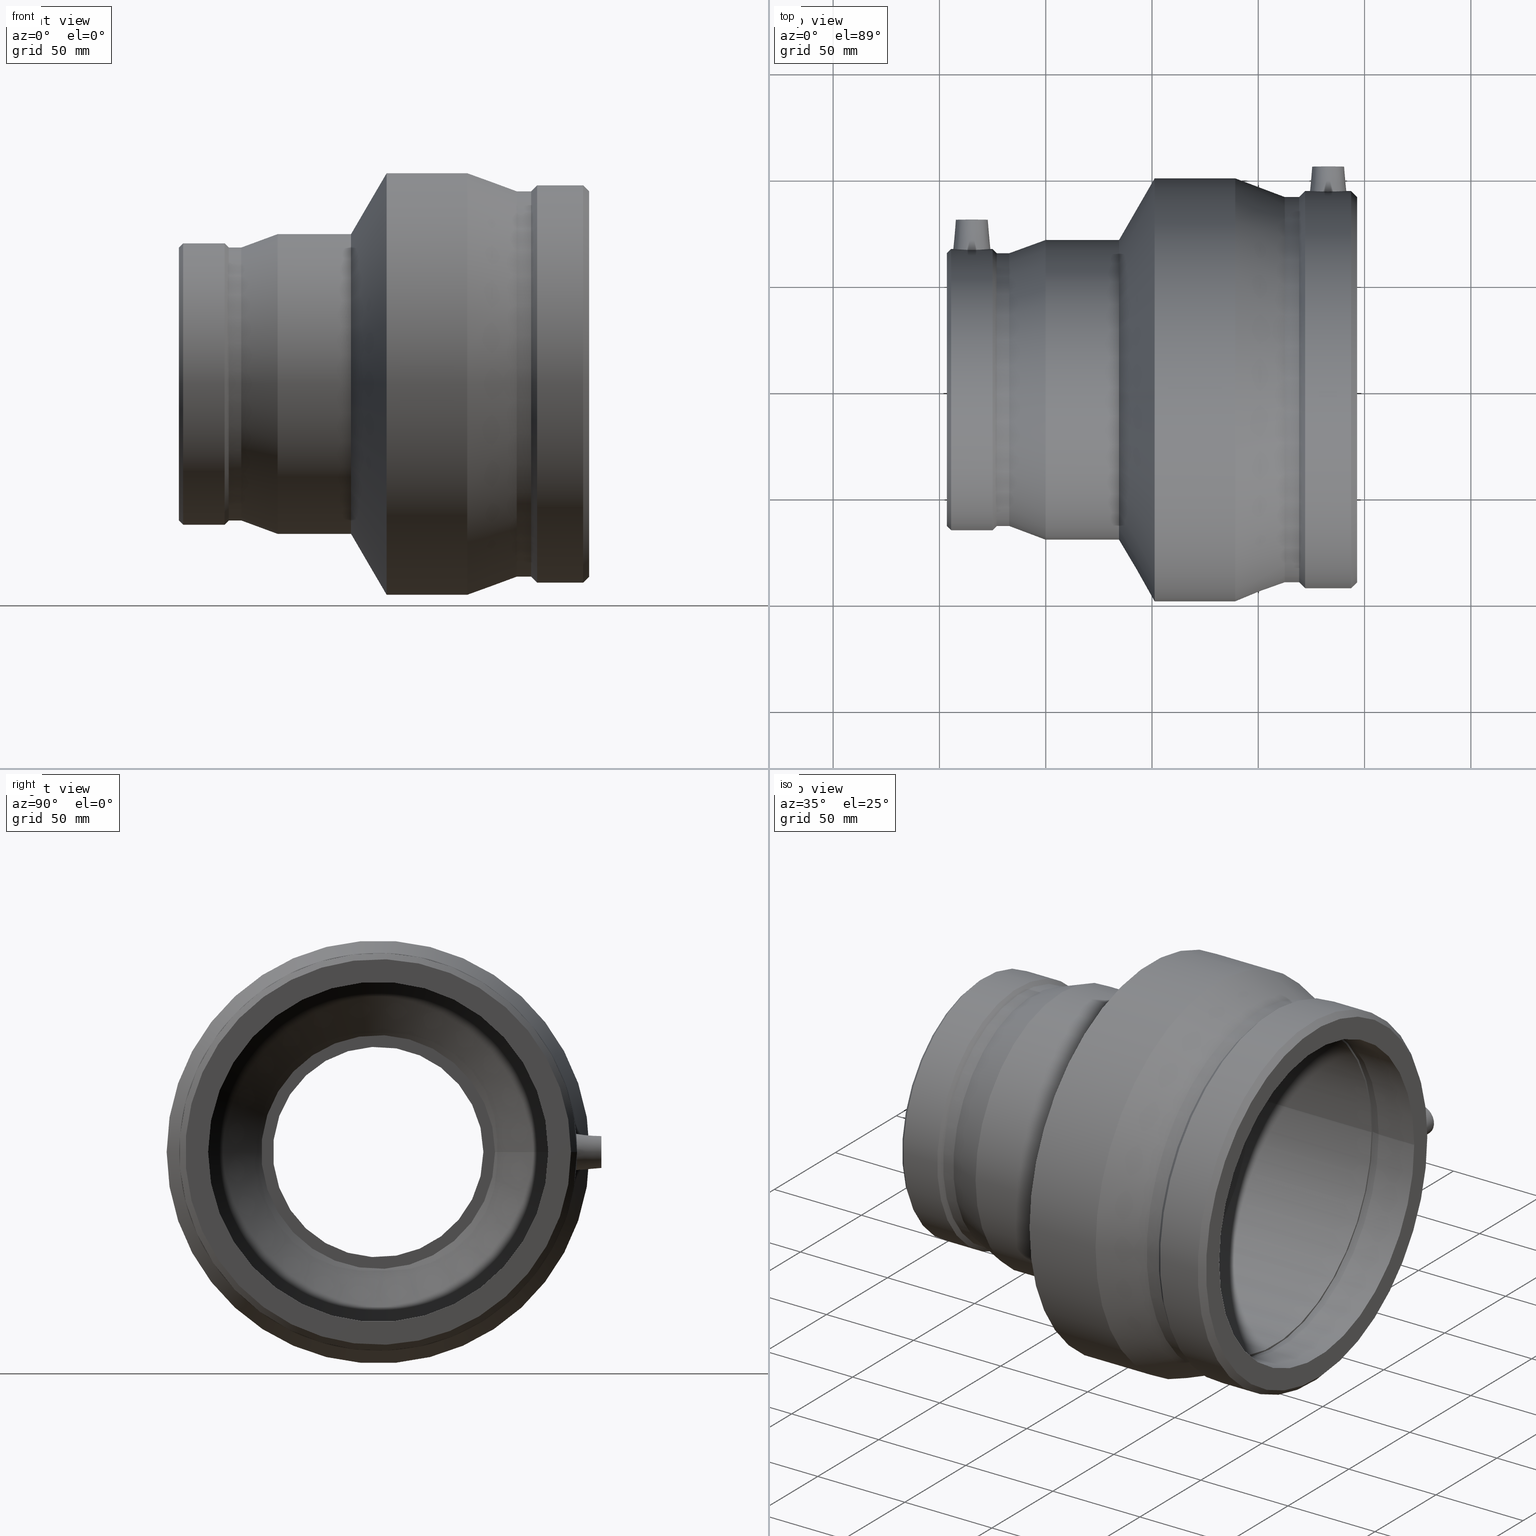
[diagram: canonical four-view strip — front | top / right | iso, engineering-drawing reading convention]
A machine part, canonical four-view strip (front | top / right | iso — engineering-drawing reading convention). The complete STEP part file that produces these views, byte-faithful:
ISO-10303-21;
HEADER;
/* Generated by software containing ST-Developer
 * from STEP Tools, Inc. (www.steptools.com) 
 */

FILE_DESCRIPTION(
/* description */ ('PLASSON REDUCING COUPLER 160-110'),
/* implementation_level */ '2;1');

FILE_NAME(
/* name */ 
'C:\\Dropbox\\KIMPROJECTS-Inventor\\99-16-3568-Processing\\ElectroFusi
on Fittings\\491104\\491104160110.ipt.stp',
/* time_stamp */ '2017-11-06T09:12:46+02:00',
/* author */ ('KIM'),
/* organization */ (''),
/* preprocessor_version */ 'ST-DEVELOPER v15.6',
/* originating_system */ 'Autodesk Inventor 2015',
/* authorisation */ '');

FILE_SCHEMA (('AUTOMOTIVE_DESIGN { 1 0 10303 214 3 1 1 }'));
ENDSEC;

DATA;
#10=MECHANICAL_DESIGN_GEOMETRIC_PRESENTATION_REPRESENTATION('',(#13),#863);
#11=SHAPE_REPRESENTATION_RELATIONSHIP('SRR','None',#872,#12);
#12=ADVANCED_BREP_SHAPE_REPRESENTATION($,(#14),#862);
#13=STYLED_ITEM('',(#881),#14);
#14=MANIFOLD_SOLID_BREP('Solid1',#444);
#15=B_SPLINE_CURVE_WITH_KNOTS('',3,(#697,#698,#699,#700,#701,#702,#703,
#704,#705,#706,#707,#708,#709,#710,#711,#712,#713,#714,#715,#716,#717,#718,
#719,#720,#721,#722,#723,#724,#725,#726,#727,#728,#729,#730),
 .UNSPECIFIED.,.T.,.F.,(4,2,2,2,2,2,2,2,2,2,2,2,2,2,2,2,4),(0.,0.321299273640737,
0.642598547281474,0.963601830435798,1.28460511359012,1.60560839674445,1.92661167989877,
2.24791095353951,2.56921022718025,2.89050950082098,3.21180877446172,3.53281205761604,
3.85381534077037,4.17481862392469,4.49582190707902,4.81712118071975,5.13842045436049),
 .UNSPECIFIED.);
#16=B_SPLINE_CURVE_WITH_KNOTS('',3,(#745,#746,#747,#748,#749,#750,#751,
#752,#753,#754,#755,#756,#757,#758,#759,#760,#761,#762,#763,#764,#765,#766,
#767,#768,#769,#770,#771,#772,#773,#774,#775,#776,#777,#778),
 .UNSPECIFIED.,.T.,.F.,(4,2,2,2,2,2,2,2,2,2,2,2,2,2,2,2,4),(0.,0.329357665774512,
0.658715331549024,0.987627213761086,1.31653909597315,1.64545097818521,1.97436286039727,
2.30372052617178,2.6330781919463,2.96243585772081,3.29179352349532,3.62070540570738,
3.94961728791944,4.27852917013151,4.60744105234357,4.93679871811808,5.26615638389259),
 .UNSPECIFIED.);
#17=CONICAL_SURFACE('',#458,7.5,5.);
#18=CONICAL_SURFACE('',#467,7.5,5.);
#19=CONICAL_SURFACE('',#471,65.27595,45.);
#20=CONICAL_SURFACE('',#475,65.27595,44.9999999999998);
#21=CONICAL_SURFACE('',#479,67.39095,20.);
#22=CONICAL_SURFACE('',#483,85.,60.0000000000001);
#23=CONICAL_SURFACE('',#487,95.11205,20.6668482190193);
#24=CONICAL_SURFACE('',#491,92.12705,45.);
#25=CONICAL_SURFACE('',#495,92.12705,45.);
#26=CONICAL_SURFACE('',#501,80.4304270373818,12.0000000000002);
#27=CONICAL_SURFACE('',#507,67.5,60.8384827807957);
#28=CONICAL_SURFACE('',#519,55.4304270373818,12.);
#29=FACE_BOUND('',#125,.T.);
#30=FACE_BOUND('',#127,.T.);
#31=FACE_BOUND('',#129,.T.);
#32=FACE_BOUND('',#131,.T.);
#33=FACE_BOUND('',#133,.T.);
#34=FACE_BOUND('',#135,.T.);
#35=FACE_BOUND('',#137,.T.);
#36=FACE_BOUND('',#139,.T.);
#37=FACE_BOUND('',#141,.T.);
#38=FACE_BOUND('',#143,.T.);
#39=FACE_BOUND('',#145,.T.);
#40=FACE_BOUND('',#147,.T.);
#41=FACE_BOUND('',#149,.T.);
#42=FACE_BOUND('',#150,.T.);
#43=FACE_BOUND('',#152,.T.);
#44=FACE_BOUND('',#154,.T.);
#45=FACE_BOUND('',#156,.T.);
#46=FACE_BOUND('',#158,.T.);
#47=FACE_BOUND('',#160,.T.);
#48=FACE_BOUND('',#162,.T.);
#49=FACE_BOUND('',#164,.T.);
#50=FACE_BOUND('',#166,.T.);
#51=FACE_BOUND('',#168,.T.);
#52=FACE_BOUND('',#170,.T.);
#53=FACE_BOUND('',#171,.T.);
#54=FACE_BOUND('',#173,.T.);
#55=FACE_BOUND('',#175,.T.);
#56=FACE_BOUND('',#177,.T.);
#57=FACE_BOUND('',#179,.T.);
#58=FACE_BOUND('',#181,.T.);
#59=FACE_BOUND('',#183,.T.);
#60=FACE_BOUND('',#185,.T.);
#61=FACE_BOUND('',#187,.T.);
#62=FACE_BOUND('',#189,.T.);
#63=FACE_BOUND('',#191,.T.);
#64=FACE_BOUND('',#193,.T.);
#65=FACE_BOUND('',#195,.T.);
#66=FACE_BOUND('',#197,.T.);
#67=FACE_BOUND('',#199,.T.);
#68=CYLINDRICAL_SURFACE('',#450,2.);
#69=CYLINDRICAL_SURFACE('',#452,5.);
#70=CYLINDRICAL_SURFACE('',#459,2.);
#71=CYLINDRICAL_SURFACE('',#461,5.);
#72=CYLINDRICAL_SURFACE('',#473,66.27);
#73=CYLINDRICAL_SURFACE('',#477,64.2819);
#74=CYLINDRICAL_SURFACE('',#481,70.5);
#75=CYLINDRICAL_SURFACE('',#485,99.5);
#76=CYLINDRICAL_SURFACE('',#489,90.7241);
#77=CYLINDRICAL_SURFACE('',#493,93.53);
#78=CYLINDRICAL_SURFACE('',#499,80.);
#79=CYLINDRICAL_SURFACE('',#505,80.);
#80=CYLINDRICAL_SURFACE('',#511,49.5);
#81=CYLINDRICAL_SURFACE('',#515,55.);
#82=CYLINDRICAL_SURFACE('',#521,55.);
#83=FACE_OUTER_BOUND('',#122,.T.);
#84=FACE_OUTER_BOUND('',#123,.T.);
#85=FACE_OUTER_BOUND('',#124,.T.);
#86=FACE_OUTER_BOUND('',#126,.T.);
#87=FACE_OUTER_BOUND('',#128,.T.);
#88=FACE_OUTER_BOUND('',#130,.T.);
#89=FACE_OUTER_BOUND('',#132,.T.);
#90=FACE_OUTER_BOUND('',#134,.T.);
#91=FACE_OUTER_BOUND('',#136,.T.);
#92=FACE_OUTER_BOUND('',#138,.T.);
#93=FACE_OUTER_BOUND('',#140,.T.);
#94=FACE_OUTER_BOUND('',#142,.T.);
#95=FACE_OUTER_BOUND('',#144,.T.);
#96=FACE_OUTER_BOUND('',#146,.T.);
#97=FACE_OUTER_BOUND('',#148,.T.);
#98=FACE_OUTER_BOUND('',#151,.T.);
#99=FACE_OUTER_BOUND('',#153,.T.);
#100=FACE_OUTER_BOUND('',#155,.T.);
#101=FACE_OUTER_BOUND('',#157,.T.);
#102=FACE_OUTER_BOUND('',#159,.T.);
#103=FACE_OUTER_BOUND('',#161,.T.);
#104=FACE_OUTER_BOUND('',#163,.T.);
#105=FACE_OUTER_BOUND('',#165,.T.);
#106=FACE_OUTER_BOUND('',#167,.T.);
#107=FACE_OUTER_BOUND('',#169,.T.);
#108=FACE_OUTER_BOUND('',#172,.T.);
#109=FACE_OUTER_BOUND('',#174,.T.);
#110=FACE_OUTER_BOUND('',#176,.T.);
#111=FACE_OUTER_BOUND('',#178,.T.);
#112=FACE_OUTER_BOUND('',#180,.T.);
#113=FACE_OUTER_BOUND('',#182,.T.);
#114=FACE_OUTER_BOUND('',#184,.T.);
#115=FACE_OUTER_BOUND('',#186,.T.);
#116=FACE_OUTER_BOUND('',#188,.T.);
#117=FACE_OUTER_BOUND('',#190,.T.);
#118=FACE_OUTER_BOUND('',#192,.T.);
#119=FACE_OUTER_BOUND('',#194,.T.);
#120=FACE_OUTER_BOUND('',#196,.T.);
#121=FACE_OUTER_BOUND('',#198,.T.);
#122=EDGE_LOOP('',(#315));
#123=EDGE_LOOP('',(#316));
#124=EDGE_LOOP('',(#317));
#125=EDGE_LOOP('',(#318));
#126=EDGE_LOOP('',(#319));
#127=EDGE_LOOP('',(#320));
#128=EDGE_LOOP('',(#321));
#129=EDGE_LOOP('',(#322));
#130=EDGE_LOOP('',(#323));
#131=EDGE_LOOP('',(#324));
#132=EDGE_LOOP('',(#325));
#133=EDGE_LOOP('',(#326));
#134=EDGE_LOOP('',(#327));
#135=EDGE_LOOP('',(#328));
#136=EDGE_LOOP('',(#329));
#137=EDGE_LOOP('',(#330));
#138=EDGE_LOOP('',(#331));
#139=EDGE_LOOP('',(#332));
#140=EDGE_LOOP('',(#333));
#141=EDGE_LOOP('',(#334));
#142=EDGE_LOOP('',(#335));
#143=EDGE_LOOP('',(#336));
#144=EDGE_LOOP('',(#337));
#145=EDGE_LOOP('',(#338));
#146=EDGE_LOOP('',(#339));
#147=EDGE_LOOP('',(#340));
#148=EDGE_LOOP('',(#341));
#149=EDGE_LOOP('',(#342));
#150=EDGE_LOOP('',(#343));
#151=EDGE_LOOP('',(#344));
#152=EDGE_LOOP('',(#345));
#153=EDGE_LOOP('',(#346));
#154=EDGE_LOOP('',(#347));
#155=EDGE_LOOP('',(#348));
#156=EDGE_LOOP('',(#349));
#157=EDGE_LOOP('',(#350));
#158=EDGE_LOOP('',(#351));
#159=EDGE_LOOP('',(#352));
#160=EDGE_LOOP('',(#353));
#161=EDGE_LOOP('',(#354));
#162=EDGE_LOOP('',(#355));
#163=EDGE_LOOP('',(#356));
#164=EDGE_LOOP('',(#357));
#165=EDGE_LOOP('',(#358));
#166=EDGE_LOOP('',(#359));
#167=EDGE_LOOP('',(#360));
#168=EDGE_LOOP('',(#361));
#169=EDGE_LOOP('',(#362));
#170=EDGE_LOOP('',(#363));
#171=EDGE_LOOP('',(#364));
#172=EDGE_LOOP('',(#365));
#173=EDGE_LOOP('',(#366));
#174=EDGE_LOOP('',(#367));
#175=EDGE_LOOP('',(#368));
#176=EDGE_LOOP('',(#369));
#177=EDGE_LOOP('',(#370));
#178=EDGE_LOOP('',(#371));
#179=EDGE_LOOP('',(#372));
#180=EDGE_LOOP('',(#373));
#181=EDGE_LOOP('',(#374));
#182=EDGE_LOOP('',(#375));
#183=EDGE_LOOP('',(#376));
#184=EDGE_LOOP('',(#377));
#185=EDGE_LOOP('',(#378));
#186=EDGE_LOOP('',(#379));
#187=EDGE_LOOP('',(#380));
#188=EDGE_LOOP('',(#381));
#189=EDGE_LOOP('',(#382));
#190=EDGE_LOOP('',(#383));
#191=EDGE_LOOP('',(#384));
#192=EDGE_LOOP('',(#385));
#193=EDGE_LOOP('',(#386));
#194=EDGE_LOOP('',(#387));
#195=EDGE_LOOP('',(#388));
#196=EDGE_LOOP('',(#389));
#197=EDGE_LOOP('',(#390));
#198=EDGE_LOOP('',(#391));
#199=EDGE_LOOP('',(#392));
#200=CIRCLE('',#447,2.);
#201=CIRCLE('',#449,2.);
#202=CIRCLE('',#451,2.);
#203=CIRCLE('',#453,5.);
#204=CIRCLE('',#454,5.);
#205=CIRCLE('',#457,7.5);
#206=CIRCLE('',#460,2.);
#207=CIRCLE('',#462,5.);
#208=CIRCLE('',#463,5.);
#209=CIRCLE('',#466,7.5);
#210=CIRCLE('',#469,64.2819);
#211=CIRCLE('',#470,55.);
#212=CIRCLE('',#472,66.27);
#213=CIRCLE('',#474,66.27);
#214=CIRCLE('',#476,64.2819);
#215=CIRCLE('',#478,64.2819);
#216=CIRCLE('',#480,70.5);
#217=CIRCLE('',#482,70.5);
#218=CIRCLE('',#484,99.5);
#219=CIRCLE('',#486,99.5);
#220=CIRCLE('',#488,90.7241);
#221=CIRCLE('',#490,90.7241);
#222=CIRCLE('',#492,93.53);
#223=CIRCLE('',#494,93.53);
#224=CIRCLE('',#496,90.7241);
#225=CIRCLE('',#498,80.);
#226=CIRCLE('',#500,80.);
#227=CIRCLE('',#502,80.8608540747636);
#228=CIRCLE('',#504,80.);
#229=CIRCLE('',#506,80.);
#230=CIRCLE('',#508,55.);
#231=CIRCLE('',#510,49.5);
#232=CIRCLE('',#512,49.5);
#233=CIRCLE('',#514,55.);
#234=CIRCLE('',#516,55.);
#235=CIRCLE('',#518,55.8608540747636);
#236=CIRCLE('',#520,55.);
#237=VERTEX_POINT('',#678);
#238=VERTEX_POINT('',#681);
#239=VERTEX_POINT('',#684);
#240=VERTEX_POINT('',#687);
#241=VERTEX_POINT('',#689);
#242=VERTEX_POINT('',#693);
#243=VERTEX_POINT('',#696);
#244=VERTEX_POINT('',#732);
#245=VERTEX_POINT('',#735);
#246=VERTEX_POINT('',#737);
#247=VERTEX_POINT('',#741);
#248=VERTEX_POINT('',#744);
#249=VERTEX_POINT('',#780);
#250=VERTEX_POINT('',#782);
#251=VERTEX_POINT('',#785);
#252=VERTEX_POINT('',#788);
#253=VERTEX_POINT('',#791);
#254=VERTEX_POINT('',#794);
#255=VERTEX_POINT('',#797);
#256=VERTEX_POINT('',#800);
#257=VERTEX_POINT('',#803);
#258=VERTEX_POINT('',#806);
#259=VERTEX_POINT('',#809);
#260=VERTEX_POINT('',#812);
#261=VERTEX_POINT('',#815);
#262=VERTEX_POINT('',#818);
#263=VERTEX_POINT('',#821);
#264=VERTEX_POINT('',#824);
#265=VERTEX_POINT('',#827);
#266=VERTEX_POINT('',#830);
#267=VERTEX_POINT('',#833);
#268=VERTEX_POINT('',#836);
#269=VERTEX_POINT('',#839);
#270=VERTEX_POINT('',#842);
#271=VERTEX_POINT('',#845);
#272=VERTEX_POINT('',#848);
#273=VERTEX_POINT('',#851);
#274=VERTEX_POINT('',#854);
#275=VERTEX_POINT('',#857);
#276=EDGE_CURVE('',#237,#237,#200,.T.);
#277=EDGE_CURVE('',#238,#238,#201,.T.);
#278=EDGE_CURVE('',#239,#239,#202,.T.);
#279=EDGE_CURVE('',#240,#240,#203,.T.);
#280=EDGE_CURVE('',#241,#241,#204,.T.);
#281=EDGE_CURVE('',#242,#242,#205,.T.);
#282=EDGE_CURVE('',#243,#243,#15,.T.);
#283=EDGE_CURVE('',#244,#244,#206,.T.);
#284=EDGE_CURVE('',#245,#245,#207,.T.);
#285=EDGE_CURVE('',#246,#246,#208,.T.);
#286=EDGE_CURVE('',#247,#247,#209,.T.);
#287=EDGE_CURVE('',#248,#248,#16,.T.);
#288=EDGE_CURVE('',#249,#249,#210,.T.);
#289=EDGE_CURVE('',#250,#250,#211,.T.);
#290=EDGE_CURVE('',#251,#251,#212,.T.);
#291=EDGE_CURVE('',#252,#252,#213,.T.);
#292=EDGE_CURVE('',#253,#253,#214,.T.);
#293=EDGE_CURVE('',#254,#254,#215,.T.);
#294=EDGE_CURVE('',#255,#255,#216,.T.);
#295=EDGE_CURVE('',#256,#256,#217,.T.);
#296=EDGE_CURVE('',#257,#257,#218,.T.);
#297=EDGE_CURVE('',#258,#258,#219,.T.);
#298=EDGE_CURVE('',#259,#259,#220,.T.);
#299=EDGE_CURVE('',#260,#260,#221,.T.);
#300=EDGE_CURVE('',#261,#261,#222,.T.);
#301=EDGE_CURVE('',#262,#262,#223,.T.);
#302=EDGE_CURVE('',#263,#263,#224,.T.);
#303=EDGE_CURVE('',#264,#264,#225,.T.);
#304=EDGE_CURVE('',#265,#265,#226,.T.);
#305=EDGE_CURVE('',#266,#266,#227,.T.);
#306=EDGE_CURVE('',#267,#267,#228,.T.);
#307=EDGE_CURVE('',#268,#268,#229,.T.);
#308=EDGE_CURVE('',#269,#269,#230,.T.);
#309=EDGE_CURVE('',#270,#270,#231,.T.);
#310=EDGE_CURVE('',#271,#271,#232,.T.);
#311=EDGE_CURVE('',#272,#272,#233,.T.);
#312=EDGE_CURVE('',#273,#273,#234,.T.);
#313=EDGE_CURVE('',#274,#274,#235,.T.);
#314=EDGE_CURVE('',#275,#275,#236,.T.);
#315=ORIENTED_EDGE('',*,*,#276,.F.);
#316=ORIENTED_EDGE('',*,*,#277,.F.);
#317=ORIENTED_EDGE('',*,*,#276,.T.);
#318=ORIENTED_EDGE('',*,*,#278,.T.);
#319=ORIENTED_EDGE('',*,*,#279,.T.);
#320=ORIENTED_EDGE('',*,*,#280,.F.);
#321=ORIENTED_EDGE('',*,*,#279,.F.);
#322=ORIENTED_EDGE('',*,*,#278,.F.);
#323=ORIENTED_EDGE('',*,*,#281,.F.);
#324=ORIENTED_EDGE('',*,*,#280,.T.);
#325=ORIENTED_EDGE('',*,*,#281,.T.);
#326=ORIENTED_EDGE('',*,*,#282,.F.);
#327=ORIENTED_EDGE('',*,*,#277,.T.);
#328=ORIENTED_EDGE('',*,*,#283,.T.);
#329=ORIENTED_EDGE('',*,*,#284,.T.);
#330=ORIENTED_EDGE('',*,*,#285,.F.);
#331=ORIENTED_EDGE('',*,*,#284,.F.);
#332=ORIENTED_EDGE('',*,*,#283,.F.);
#333=ORIENTED_EDGE('',*,*,#286,.F.);
#334=ORIENTED_EDGE('',*,*,#285,.T.);
#335=ORIENTED_EDGE('',*,*,#286,.T.);
#336=ORIENTED_EDGE('',*,*,#287,.F.);
#337=ORIENTED_EDGE('',*,*,#288,.F.);
#338=ORIENTED_EDGE('',*,*,#289,.T.);
#339=ORIENTED_EDGE('',*,*,#288,.T.);
#340=ORIENTED_EDGE('',*,*,#290,.F.);
#341=ORIENTED_EDGE('',*,*,#290,.T.);
#342=ORIENTED_EDGE('',*,*,#287,.T.);
#343=ORIENTED_EDGE('',*,*,#291,.F.);
#344=ORIENTED_EDGE('',*,*,#291,.T.);
#345=ORIENTED_EDGE('',*,*,#292,.F.);
#346=ORIENTED_EDGE('',*,*,#292,.T.);
#347=ORIENTED_EDGE('',*,*,#293,.F.);
#348=ORIENTED_EDGE('',*,*,#293,.T.);
#349=ORIENTED_EDGE('',*,*,#294,.F.);
#350=ORIENTED_EDGE('',*,*,#294,.T.);
#351=ORIENTED_EDGE('',*,*,#295,.F.);
#352=ORIENTED_EDGE('',*,*,#295,.T.);
#353=ORIENTED_EDGE('',*,*,#296,.F.);
#354=ORIENTED_EDGE('',*,*,#296,.T.);
#355=ORIENTED_EDGE('',*,*,#297,.F.);
#356=ORIENTED_EDGE('',*,*,#297,.T.);
#357=ORIENTED_EDGE('',*,*,#298,.F.);
#358=ORIENTED_EDGE('',*,*,#298,.T.);
#359=ORIENTED_EDGE('',*,*,#299,.F.);
#360=ORIENTED_EDGE('',*,*,#299,.T.);
#361=ORIENTED_EDGE('',*,*,#300,.F.);
#362=ORIENTED_EDGE('',*,*,#300,.T.);
#363=ORIENTED_EDGE('',*,*,#282,.T.);
#364=ORIENTED_EDGE('',*,*,#301,.F.);
#365=ORIENTED_EDGE('',*,*,#301,.T.);
#366=ORIENTED_EDGE('',*,*,#302,.F.);
#367=ORIENTED_EDGE('',*,*,#302,.T.);
#368=ORIENTED_EDGE('',*,*,#303,.F.);
#369=ORIENTED_EDGE('',*,*,#303,.T.);
#370=ORIENTED_EDGE('',*,*,#304,.F.);
#371=ORIENTED_EDGE('',*,*,#304,.T.);
#372=ORIENTED_EDGE('',*,*,#305,.F.);
#373=ORIENTED_EDGE('',*,*,#305,.T.);
#374=ORIENTED_EDGE('',*,*,#306,.F.);
#375=ORIENTED_EDGE('',*,*,#306,.T.);
#376=ORIENTED_EDGE('',*,*,#307,.F.);
#377=ORIENTED_EDGE('',*,*,#307,.T.);
#378=ORIENTED_EDGE('',*,*,#308,.F.);
#379=ORIENTED_EDGE('',*,*,#308,.T.);
#380=ORIENTED_EDGE('',*,*,#309,.F.);
#381=ORIENTED_EDGE('',*,*,#309,.T.);
#382=ORIENTED_EDGE('',*,*,#310,.F.);
#383=ORIENTED_EDGE('',*,*,#311,.F.);
#384=ORIENTED_EDGE('',*,*,#310,.T.);
#385=ORIENTED_EDGE('',*,*,#311,.T.);
#386=ORIENTED_EDGE('',*,*,#312,.F.);
#387=ORIENTED_EDGE('',*,*,#313,.F.);
#388=ORIENTED_EDGE('',*,*,#312,.T.);
#389=ORIENTED_EDGE('',*,*,#313,.T.);
#390=ORIENTED_EDGE('',*,*,#314,.F.);
#391=ORIENTED_EDGE('',*,*,#314,.T.);
#392=ORIENTED_EDGE('',*,*,#289,.F.);
#393=PLANE('',#446);
#394=PLANE('',#448);
#395=PLANE('',#455);
#396=PLANE('',#456);
#397=PLANE('',#464);
#398=PLANE('',#465);
#399=PLANE('',#468);
#400=PLANE('',#497);
#401=PLANE('',#503);
#402=PLANE('',#509);
#403=PLANE('',#513);
#404=PLANE('',#517);
#405=ADVANCED_FACE('',(#83),#393,.T.);
#406=ADVANCED_FACE('',(#84),#394,.T.);
#407=ADVANCED_FACE('',(#85,#29),#68,.T.);
#408=ADVANCED_FACE('',(#86,#30),#69,.F.);
#409=ADVANCED_FACE('',(#87,#31),#395,.T.);
#410=ADVANCED_FACE('',(#88,#32),#396,.T.);
#411=ADVANCED_FACE('',(#89,#33),#17,.T.);
#412=ADVANCED_FACE('',(#90,#34),#70,.T.);
#413=ADVANCED_FACE('',(#91,#35),#71,.F.);
#414=ADVANCED_FACE('',(#92,#36),#397,.T.);
#415=ADVANCED_FACE('',(#93,#37),#398,.T.);
#416=ADVANCED_FACE('',(#94,#38),#18,.T.);
#417=ADVANCED_FACE('',(#95,#39),#399,.T.);
#418=ADVANCED_FACE('',(#96,#40),#19,.T.);
#419=ADVANCED_FACE('',(#97,#41,#42),#72,.T.);
#420=ADVANCED_FACE('',(#98,#43),#20,.T.);
#421=ADVANCED_FACE('',(#99,#44),#73,.T.);
#422=ADVANCED_FACE('',(#100,#45),#21,.T.);
#423=ADVANCED_FACE('',(#101,#46),#74,.T.);
#424=ADVANCED_FACE('',(#102,#47),#22,.T.);
#425=ADVANCED_FACE('',(#103,#48),#75,.T.);
#426=ADVANCED_FACE('',(#104,#49),#23,.T.);
#427=ADVANCED_FACE('',(#105,#50),#76,.T.);
#428=ADVANCED_FACE('',(#106,#51),#24,.T.);
#429=ADVANCED_FACE('',(#107,#52,#53),#77,.T.);
#430=ADVANCED_FACE('',(#108,#54),#25,.T.);
#431=ADVANCED_FACE('',(#109,#55),#400,.T.);
#432=ADVANCED_FACE('',(#110,#56),#78,.F.);
#433=ADVANCED_FACE('',(#111,#57),#26,.F.);
#434=ADVANCED_FACE('',(#112,#58),#401,.T.);
#435=ADVANCED_FACE('',(#113,#59),#79,.F.);
#436=ADVANCED_FACE('',(#114,#60),#27,.F.);
#437=ADVANCED_FACE('',(#115,#61),#402,.T.);
#438=ADVANCED_FACE('',(#116,#62),#80,.F.);
#439=ADVANCED_FACE('',(#117,#63),#403,.T.);
#440=ADVANCED_FACE('',(#118,#64),#81,.F.);
#441=ADVANCED_FACE('',(#119,#65),#404,.T.);
#442=ADVANCED_FACE('',(#120,#66),#28,.F.);
#443=ADVANCED_FACE('',(#121,#67),#82,.F.);
#444=CLOSED_SHELL('',(#405,#406,#407,#408,#409,#410,#411,#412,#413,#414,
#415,#416,#417,#418,#419,#420,#421,#422,#423,#424,#425,#426,#427,#428,#429,
#430,#431,#432,#433,#434,#435,#436,#437,#438,#439,#440,#441,#442,#443));
#445=AXIS2_PLACEMENT_3D('placement',#676,#522,#523);
#446=AXIS2_PLACEMENT_3D('',#677,#524,#525);
#447=AXIS2_PLACEMENT_3D('',#679,#526,#527);
#448=AXIS2_PLACEMENT_3D('',#680,#528,#529);
#449=AXIS2_PLACEMENT_3D('',#682,#530,#531);
#450=AXIS2_PLACEMENT_3D('',#683,#532,#533);
#451=AXIS2_PLACEMENT_3D('',#685,#534,#535);
#452=AXIS2_PLACEMENT_3D('',#686,#536,#537);
#453=AXIS2_PLACEMENT_3D('',#688,#538,#539);
#454=AXIS2_PLACEMENT_3D('',#690,#540,#541);
#455=AXIS2_PLACEMENT_3D('',#691,#542,#543);
#456=AXIS2_PLACEMENT_3D('',#692,#544,#545);
#457=AXIS2_PLACEMENT_3D('',#694,#546,#547);
#458=AXIS2_PLACEMENT_3D('',#695,#548,#549);
#459=AXIS2_PLACEMENT_3D('',#731,#550,#551);
#460=AXIS2_PLACEMENT_3D('',#733,#552,#553);
#461=AXIS2_PLACEMENT_3D('',#734,#554,#555);
#462=AXIS2_PLACEMENT_3D('',#736,#556,#557);
#463=AXIS2_PLACEMENT_3D('',#738,#558,#559);
#464=AXIS2_PLACEMENT_3D('',#739,#560,#561);
#465=AXIS2_PLACEMENT_3D('',#740,#562,#563);
#466=AXIS2_PLACEMENT_3D('',#742,#564,#565);
#467=AXIS2_PLACEMENT_3D('',#743,#566,#567);
#468=AXIS2_PLACEMENT_3D('',#779,#568,#569);
#469=AXIS2_PLACEMENT_3D('',#781,#570,#571);
#470=AXIS2_PLACEMENT_3D('',#783,#572,#573);
#471=AXIS2_PLACEMENT_3D('',#784,#574,#575);
#472=AXIS2_PLACEMENT_3D('',#786,#576,#577);
#473=AXIS2_PLACEMENT_3D('',#787,#578,#579);
#474=AXIS2_PLACEMENT_3D('',#789,#580,#581);
#475=AXIS2_PLACEMENT_3D('',#790,#582,#583);
#476=AXIS2_PLACEMENT_3D('',#792,#584,#585);
#477=AXIS2_PLACEMENT_3D('',#793,#586,#587);
#478=AXIS2_PLACEMENT_3D('',#795,#588,#589);
#479=AXIS2_PLACEMENT_3D('',#796,#590,#591);
#480=AXIS2_PLACEMENT_3D('',#798,#592,#593);
#481=AXIS2_PLACEMENT_3D('',#799,#594,#595);
#482=AXIS2_PLACEMENT_3D('',#801,#596,#597);
#483=AXIS2_PLACEMENT_3D('',#802,#598,#599);
#484=AXIS2_PLACEMENT_3D('',#804,#600,#601);
#485=AXIS2_PLACEMENT_3D('',#805,#602,#603);
#486=AXIS2_PLACEMENT_3D('',#807,#604,#605);
#487=AXIS2_PLACEMENT_3D('',#808,#606,#607);
#488=AXIS2_PLACEMENT_3D('',#810,#608,#609);
#489=AXIS2_PLACEMENT_3D('',#811,#610,#611);
#490=AXIS2_PLACEMENT_3D('',#813,#612,#613);
#491=AXIS2_PLACEMENT_3D('',#814,#614,#615);
#492=AXIS2_PLACEMENT_3D('',#816,#616,#617);
#493=AXIS2_PLACEMENT_3D('',#817,#618,#619);
#494=AXIS2_PLACEMENT_3D('',#819,#620,#621);
#495=AXIS2_PLACEMENT_3D('',#820,#622,#623);
#496=AXIS2_PLACEMENT_3D('',#822,#624,#625);
#497=AXIS2_PLACEMENT_3D('',#823,#626,#627);
#498=AXIS2_PLACEMENT_3D('',#825,#628,#629);
#499=AXIS2_PLACEMENT_3D('',#826,#630,#631);
#500=AXIS2_PLACEMENT_3D('',#828,#632,#633);
#501=AXIS2_PLACEMENT_3D('',#829,#634,#635);
#502=AXIS2_PLACEMENT_3D('',#831,#636,#637);
#503=AXIS2_PLACEMENT_3D('',#832,#638,#639);
#504=AXIS2_PLACEMENT_3D('',#834,#640,#641);
#505=AXIS2_PLACEMENT_3D('',#835,#642,#643);
#506=AXIS2_PLACEMENT_3D('',#837,#644,#645);
#507=AXIS2_PLACEMENT_3D('',#838,#646,#647);
#508=AXIS2_PLACEMENT_3D('',#840,#648,#649);
#509=AXIS2_PLACEMENT_3D('',#841,#650,#651);
#510=AXIS2_PLACEMENT_3D('',#843,#652,#653);
#511=AXIS2_PLACEMENT_3D('',#844,#654,#655);
#512=AXIS2_PLACEMENT_3D('',#846,#656,#657);
#513=AXIS2_PLACEMENT_3D('',#847,#658,#659);
#514=AXIS2_PLACEMENT_3D('',#849,#660,#661);
#515=AXIS2_PLACEMENT_3D('',#850,#662,#663);
#516=AXIS2_PLACEMENT_3D('',#852,#664,#665);
#517=AXIS2_PLACEMENT_3D('',#853,#666,#667);
#518=AXIS2_PLACEMENT_3D('',#855,#668,#669);
#519=AXIS2_PLACEMENT_3D('',#856,#670,#671);
#520=AXIS2_PLACEMENT_3D('',#858,#672,#673);
#521=AXIS2_PLACEMENT_3D('',#859,#674,#675);
#522=DIRECTION('axis',(0.,0.,1.));
#523=DIRECTION('refdir',(1.,0.,0.));
#524=DIRECTION('center_axis',(0.,1.,0.));
#525=DIRECTION('ref_axis',(0.,0.,1.));
#526=DIRECTION('center_axis',(0.,-1.,0.));
#527=DIRECTION('ref_axis',(-1.,0.,0.));
#528=DIRECTION('center_axis',(0.,1.,0.));
#529=DIRECTION('ref_axis',(0.,0.,1.));
#530=DIRECTION('center_axis',(0.,-1.,0.));
#531=DIRECTION('ref_axis',(-1.,0.,0.));
#532=DIRECTION('center_axis',(0.,-1.,0.));
#533=DIRECTION('ref_axis',(-1.,0.,0.));
#534=DIRECTION('center_axis',(0.,1.,0.));
#535=DIRECTION('ref_axis',(-1.,0.,0.));
#536=DIRECTION('center_axis',(0.,-1.,0.));
#537=DIRECTION('ref_axis',(-1.,0.,0.));
#538=DIRECTION('center_axis',(0.,-1.,0.));
#539=DIRECTION('ref_axis',(-1.,0.,0.));
#540=DIRECTION('center_axis',(0.,-1.,0.));
#541=DIRECTION('ref_axis',(-1.,0.,0.));
#542=DIRECTION('center_axis',(0.,1.,0.));
#543=DIRECTION('ref_axis',(0.,0.,1.));
#544=DIRECTION('center_axis',(0.,1.,0.));
#545=DIRECTION('ref_axis',(0.,0.,1.));
#546=DIRECTION('center_axis',(0.,-1.,0.));
#547=DIRECTION('ref_axis',(1.,0.,0.));
#548=DIRECTION('center_axis',(0.,-1.,0.));
#549=DIRECTION('ref_axis',(1.,0.,0.));
#550=DIRECTION('center_axis',(0.,-1.,0.));
#551=DIRECTION('ref_axis',(-1.,0.,0.));
#552=DIRECTION('center_axis',(0.,1.,0.));
#553=DIRECTION('ref_axis',(-1.,0.,0.));
#554=DIRECTION('center_axis',(0.,-1.,0.));
#555=DIRECTION('ref_axis',(-1.,0.,0.));
#556=DIRECTION('center_axis',(0.,-1.,0.));
#557=DIRECTION('ref_axis',(-1.,0.,0.));
#558=DIRECTION('center_axis',(0.,-1.,0.));
#559=DIRECTION('ref_axis',(-1.,0.,0.));
#560=DIRECTION('center_axis',(0.,1.,0.));
#561=DIRECTION('ref_axis',(0.,0.,1.));
#562=DIRECTION('center_axis',(0.,1.,0.));
#563=DIRECTION('ref_axis',(0.,0.,1.));
#564=DIRECTION('center_axis',(0.,-1.,0.));
#565=DIRECTION('ref_axis',(1.,0.,0.));
#566=DIRECTION('center_axis',(0.,-1.,0.));
#567=DIRECTION('ref_axis',(1.,0.,0.));
#568=DIRECTION('center_axis',(-1.,0.,0.));
#569=DIRECTION('ref_axis',(0.,0.,1.));
#570=DIRECTION('center_axis',(1.,0.,0.));
#571=DIRECTION('ref_axis',(0.,0.,-1.));
#572=DIRECTION('center_axis',(1.,0.,0.));
#573=DIRECTION('ref_axis',(0.,0.,-1.));
#574=DIRECTION('center_axis',(1.,0.,0.));
#575=DIRECTION('ref_axis',(0.,1.,0.));
#576=DIRECTION('center_axis',(1.,0.,0.));
#577=DIRECTION('ref_axis',(0.,0.,-1.));
#578=DIRECTION('center_axis',(1.,0.,0.));
#579=DIRECTION('ref_axis',(0.,1.,0.));
#580=DIRECTION('center_axis',(1.,0.,0.));
#581=DIRECTION('ref_axis',(0.,0.,-1.));
#582=DIRECTION('center_axis',(-1.,0.,0.));
#583=DIRECTION('ref_axis',(0.,1.,0.));
#584=DIRECTION('center_axis',(1.,0.,0.));
#585=DIRECTION('ref_axis',(0.,0.,-1.));
#586=DIRECTION('center_axis',(1.,0.,0.));
#587=DIRECTION('ref_axis',(0.,1.,0.));
#588=DIRECTION('center_axis',(1.,0.,0.));
#589=DIRECTION('ref_axis',(0.,0.,-1.));
#590=DIRECTION('center_axis',(1.,0.,0.));
#591=DIRECTION('ref_axis',(0.,1.,0.));
#592=DIRECTION('center_axis',(1.,0.,0.));
#593=DIRECTION('ref_axis',(0.,0.,-1.));
#594=DIRECTION('center_axis',(1.,0.,0.));
#595=DIRECTION('ref_axis',(0.,1.,0.));
#596=DIRECTION('center_axis',(1.,0.,0.));
#597=DIRECTION('ref_axis',(0.,0.,-1.));
#598=DIRECTION('center_axis',(1.,0.,0.));
#599=DIRECTION('ref_axis',(0.,1.,0.));
#600=DIRECTION('center_axis',(1.,0.,0.));
#601=DIRECTION('ref_axis',(0.,0.,-1.));
#602=DIRECTION('center_axis',(1.,0.,0.));
#603=DIRECTION('ref_axis',(0.,1.,0.));
#604=DIRECTION('center_axis',(1.,0.,0.));
#605=DIRECTION('ref_axis',(0.,0.,-1.));
#606=DIRECTION('center_axis',(-1.,0.,0.));
#607=DIRECTION('ref_axis',(0.,1.,0.));
#608=DIRECTION('center_axis',(1.,0.,0.));
#609=DIRECTION('ref_axis',(0.,0.,-1.));
#610=DIRECTION('center_axis',(1.,0.,0.));
#611=DIRECTION('ref_axis',(0.,1.,0.));
#612=DIRECTION('center_axis',(1.,0.,0.));
#613=DIRECTION('ref_axis',(0.,0.,-1.));
#614=DIRECTION('center_axis',(1.,0.,0.));
#615=DIRECTION('ref_axis',(0.,1.,0.));
#616=DIRECTION('center_axis',(1.,0.,0.));
#617=DIRECTION('ref_axis',(0.,0.,-1.));
#618=DIRECTION('center_axis',(1.,0.,0.));
#619=DIRECTION('ref_axis',(0.,1.,0.));
#620=DIRECTION('center_axis',(1.,0.,0.));
#621=DIRECTION('ref_axis',(0.,0.,-1.));
#622=DIRECTION('center_axis',(-1.,0.,0.));
#623=DIRECTION('ref_axis',(0.,1.,0.));
#624=DIRECTION('center_axis',(1.,0.,0.));
#625=DIRECTION('ref_axis',(0.,0.,-1.));
#626=DIRECTION('center_axis',(1.,0.,0.));
#627=DIRECTION('ref_axis',(0.,0.,-1.));
#628=DIRECTION('center_axis',(1.,0.,0.));
#629=DIRECTION('ref_axis',(0.,0.,-1.));
#630=DIRECTION('center_axis',(1.,0.,0.));
#631=DIRECTION('ref_axis',(0.,1.,0.));
#632=DIRECTION('center_axis',(1.,0.,0.));
#633=DIRECTION('ref_axis',(0.,0.,-1.));
#634=DIRECTION('center_axis',(-1.,0.,0.));
#635=DIRECTION('ref_axis',(0.,1.,0.));
#636=DIRECTION('center_axis',(1.,0.,0.));
#637=DIRECTION('ref_axis',(0.,0.,-1.));
#638=DIRECTION('center_axis',(1.,0.,0.));
#639=DIRECTION('ref_axis',(0.,0.,-1.));
#640=DIRECTION('center_axis',(1.,0.,0.));
#641=DIRECTION('ref_axis',(0.,0.,-1.));
#642=DIRECTION('center_axis',(1.,0.,0.));
#643=DIRECTION('ref_axis',(0.,1.,0.));
#644=DIRECTION('center_axis',(1.,0.,0.));
#645=DIRECTION('ref_axis',(0.,0.,-1.));
#646=DIRECTION('center_axis',(1.,0.,0.));
#647=DIRECTION('ref_axis',(0.,1.,0.));
#648=DIRECTION('center_axis',(1.,0.,0.));
#649=DIRECTION('ref_axis',(0.,0.,-1.));
#650=DIRECTION('center_axis',(1.,0.,0.));
#651=DIRECTION('ref_axis',(0.,0.,-1.));
#652=DIRECTION('center_axis',(1.,0.,0.));
#653=DIRECTION('ref_axis',(0.,0.,-1.));
#654=DIRECTION('center_axis',(1.,0.,0.));
#655=DIRECTION('ref_axis',(0.,1.,0.));
#656=DIRECTION('center_axis',(1.,0.,0.));
#657=DIRECTION('ref_axis',(0.,0.,-1.));
#658=DIRECTION('center_axis',(-1.,0.,0.));
#659=DIRECTION('ref_axis',(0.,0.,1.));
#660=DIRECTION('center_axis',(1.,0.,0.));
#661=DIRECTION('ref_axis',(0.,0.,-1.));
#662=DIRECTION('center_axis',(1.,0.,0.));
#663=DIRECTION('ref_axis',(0.,1.,0.));
#664=DIRECTION('center_axis',(1.,0.,0.));
#665=DIRECTION('ref_axis',(0.,0.,-1.));
#666=DIRECTION('center_axis',(-1.,0.,0.));
#667=DIRECTION('ref_axis',(0.,0.,1.));
#668=DIRECTION('center_axis',(1.,0.,0.));
#669=DIRECTION('ref_axis',(0.,0.,-1.));
#670=DIRECTION('center_axis',(1.,0.,0.));
#671=DIRECTION('ref_axis',(0.,1.,0.));
#672=DIRECTION('center_axis',(1.,0.,0.));
#673=DIRECTION('ref_axis',(0.,0.,-1.));
#674=DIRECTION('center_axis',(1.,0.,0.));
#675=DIRECTION('ref_axis',(0.,1.,0.));
#676=CARTESIAN_POINT('',(0.,0.,0.));
#677=CARTESIAN_POINT('Origin',(82.87,102.,0.));
#678=CARTESIAN_POINT('',(84.87,102.,-2.44929359829471E-16));
#679=CARTESIAN_POINT('Origin',(82.87,102.,0.));
#680=CARTESIAN_POINT('Origin',(-84.755,77.,0.));
#681=CARTESIAN_POINT('',(-82.755,77.,-2.44929359829471E-16));
#682=CARTESIAN_POINT('Origin',(-84.755,77.,0.));
#683=CARTESIAN_POINT('Origin',(82.87,105.,0.));
#684=CARTESIAN_POINT('',(84.87,91.,-2.44929359829471E-16));
#685=CARTESIAN_POINT('Origin',(82.87,91.,0.));
#686=CARTESIAN_POINT('Origin',(82.87,105.,0.));
#687=CARTESIAN_POINT('',(87.87,91.,-6.12323399573677E-16));
#688=CARTESIAN_POINT('Origin',(82.87,91.,0.));
#689=CARTESIAN_POINT('',(87.87,105.,-6.12323399573677E-16));
#690=CARTESIAN_POINT('Origin',(82.87,105.,0.));
#691=CARTESIAN_POINT('Origin',(82.87,91.,-9.25185853854297E-17));
#692=CARTESIAN_POINT('Origin',(82.87,105.,1.2335811384724E-16));
#693=CARTESIAN_POINT('',(75.37,105.,9.18485099360515E-16));
#694=CARTESIAN_POINT('Origin',(82.87,105.,0.));
#695=CARTESIAN_POINT('Origin',(82.87,105.,0.));
#696=CARTESIAN_POINT('',(82.87,93.1395152259764,-8.5376579616489));
#697=CARTESIAN_POINT('Ctrl Pts',(82.87,93.1395152259764,-8.5376579616489));
#698=CARTESIAN_POINT('Ctrl Pts',(83.9409975788025,93.1395152259764,-8.5376579616489));
#699=CARTESIAN_POINT('Ctrl Pts',(85.0824613714146,93.1600582404902,-8.32208089505999));
#700=CARTESIAN_POINT('Ctrl Pts',(87.1799805475087,93.234048851278,-7.44752409246138));
#701=CARTESIAN_POINT('Ctrl Pts',(88.1360988781804,93.2864093442471,-6.78860369487237));
#702=CARTESIAN_POINT('Ctrl Pts',(89.6435518684584,93.3844234742819,-5.27140357409846));
#703=CARTESIAN_POINT('Ctrl Pts',(90.2959436568173,93.4364552312112,-4.31210940799332));
#704=CARTESIAN_POINT('Ctrl Pts',(91.160920149214,93.5097589422437,-2.2114330508788));
#705=CARTESIAN_POINT('Ctrl Pts',(91.3734949706424,93.53,-1.07001094384775));
#706=CARTESIAN_POINT('Ctrl Pts',(91.3734949706424,93.53,1.07001094384775));
#707=CARTESIAN_POINT('Ctrl Pts',(91.160920149214,93.5097589422437,2.2114330508788));
#708=CARTESIAN_POINT('Ctrl Pts',(90.2959436568173,93.4364552312112,4.31210940799332));
#709=CARTESIAN_POINT('Ctrl Pts',(89.6435518684584,93.3844234742819,5.27140357409846));
#710=CARTESIAN_POINT('Ctrl Pts',(88.1360988781804,93.2864093442471,6.78860369487237));
#711=CARTESIAN_POINT('Ctrl Pts',(87.1799805475087,93.234048851278,7.44752409246138));
#712=CARTESIAN_POINT('Ctrl Pts',(85.0824613714146,93.1600582404902,8.32208089505999));
#713=CARTESIAN_POINT('Ctrl Pts',(83.9409975788025,93.1395152259764,8.53765796164889));
#714=CARTESIAN_POINT('Ctrl Pts',(81.7990024211976,93.1395152259764,8.53765796164889));
#715=CARTESIAN_POINT('Ctrl Pts',(80.6575386285854,93.1600582404902,8.32208089505998));
#716=CARTESIAN_POINT('Ctrl Pts',(78.5600194524913,93.234048851278,7.44752409246138));
#717=CARTESIAN_POINT('Ctrl Pts',(77.6039011218196,93.2864093442471,6.78860369487237));
#718=CARTESIAN_POINT('Ctrl Pts',(76.0964481315416,93.3844234742819,5.27140357409846));
#719=CARTESIAN_POINT('Ctrl Pts',(75.4440563431827,93.4364552312112,4.31210940799332));
#720=CARTESIAN_POINT('Ctrl Pts',(74.5790798507861,93.5097589422437,2.21143305087881));
#721=CARTESIAN_POINT('Ctrl Pts',(74.3665050293577,93.53,1.07001094384775));
#722=CARTESIAN_POINT('Ctrl Pts',(74.3665050293577,93.53,-1.07001094384775));
#723=CARTESIAN_POINT('Ctrl Pts',(74.5790798507861,93.5097589422437,-2.21143305087881));
#724=CARTESIAN_POINT('Ctrl Pts',(75.4440563431827,93.4364552312112,-4.31210940799333));
#725=CARTESIAN_POINT('Ctrl Pts',(76.0964481315417,93.3844234742819,-5.27140357409846));
#726=CARTESIAN_POINT('Ctrl Pts',(77.6039011218196,93.2864093442471,-6.78860369487237));
#727=CARTESIAN_POINT('Ctrl Pts',(78.5600194524913,93.234048851278,-7.44752409246138));
#728=CARTESIAN_POINT('Ctrl Pts',(80.6575386285854,93.1600582404902,-8.32208089505998));
#729=CARTESIAN_POINT('Ctrl Pts',(81.7990024211976,93.1395152259764,-8.5376579616489));
#730=CARTESIAN_POINT('Ctrl Pts',(82.87,93.1395152259764,-8.5376579616489));
#731=CARTESIAN_POINT('Origin',(-84.755,80.,0.));
#732=CARTESIAN_POINT('',(-82.755,66.,-2.44929359829471E-16));
#733=CARTESIAN_POINT('Origin',(-84.755,66.,0.));
#734=CARTESIAN_POINT('Origin',(-84.755,80.,0.));
#735=CARTESIAN_POINT('',(-79.755,66.,-6.12323399573677E-16));
#736=CARTESIAN_POINT('Origin',(-84.755,66.,0.));
#737=CARTESIAN_POINT('',(-79.755,80.,-6.12323399573677E-16));
#738=CARTESIAN_POINT('Origin',(-84.755,80.,0.));
#739=CARTESIAN_POINT('Origin',(-84.755,66.,-9.25185853854297E-17));
#740=CARTESIAN_POINT('Origin',(-84.755,80.,1.2335811384724E-16));
#741=CARTESIAN_POINT('',(-92.255,80.,9.18485099360515E-16));
#742=CARTESIAN_POINT('Origin',(-84.755,80.,0.));
#743=CARTESIAN_POINT('Origin',(-84.755,80.,0.));
#744=CARTESIAN_POINT('',(-84.755,65.6895375180849,-8.75200323698063));
#745=CARTESIAN_POINT('Ctrl Pts',(-84.755,65.6895375180849,-8.75200323698063));
#746=CARTESIAN_POINT('Ctrl Pts',(-83.657141114085,65.6895375180849,-8.75200323698063));
#747=CARTESIAN_POINT('Ctrl Pts',(-82.4877695006273,65.7202639639834,-8.53021243681632));
#748=CARTESIAN_POINT('Ctrl Pts',(-80.3404967379886,65.8306117047425,-7.63204949619966));
#749=CARTESIAN_POINT('Ctrl Pts',(-79.3624644755632,65.9085792759314,-6.95578840721046));
#750=CARTESIAN_POINT('Ctrl Pts',(-77.8215876097755,66.0542015256259,-5.40042801365702));
#751=CARTESIAN_POINT('Ctrl Pts',(-77.1550212623491,66.1313676395541,-4.41767155140056));
#752=CARTESIAN_POINT('Ctrl Pts',(-76.2710985699768,66.2400200581787,-2.26568980173054));
#753=CARTESIAN_POINT('Ctrl Pts',(-76.0537806497891,66.27,-1.09637294070687));
#754=CARTESIAN_POINT('Ctrl Pts',(-76.0537806497891,66.27,1.09637294070687));
#755=CARTESIAN_POINT('Ctrl Pts',(-76.2710985699768,66.2400200581787,2.26568980173054));
#756=CARTESIAN_POINT('Ctrl Pts',(-77.1550212623491,66.1313676395541,4.41767155140056));
#757=CARTESIAN_POINT('Ctrl Pts',(-77.8215876097755,66.0542015256259,5.40042801365702));
#758=CARTESIAN_POINT('Ctrl Pts',(-79.3624644755632,65.9085792759314,6.95578840721046));
#759=CARTESIAN_POINT('Ctrl Pts',(-80.3404967379886,65.8306117047425,7.63204949619966));
#760=CARTESIAN_POINT('Ctrl Pts',(-82.4877695006274,65.7202639639834,8.53021243681632));
#761=CARTESIAN_POINT('Ctrl Pts',(-83.657141114085,65.6895375180849,8.75200323698063));
#762=CARTESIAN_POINT('Ctrl Pts',(-85.852858885915,65.6895375180849,8.75200323698063));
#763=CARTESIAN_POINT('Ctrl Pts',(-87.0222304993727,65.7202639639834,8.53021243681632));
#764=CARTESIAN_POINT('Ctrl Pts',(-89.1695032620114,65.8306117047425,7.63204949619965));
#765=CARTESIAN_POINT('Ctrl Pts',(-90.1475355244368,65.9085792759314,6.95578840721047));
#766=CARTESIAN_POINT('Ctrl Pts',(-91.6884123902245,66.0542015256259,5.40042801365702));
#767=CARTESIAN_POINT('Ctrl Pts',(-92.3549787376509,66.1313676395541,4.41767155140056));
#768=CARTESIAN_POINT('Ctrl Pts',(-93.2389014300232,66.2400200581787,2.26568980173054));
#769=CARTESIAN_POINT('Ctrl Pts',(-93.4562193502109,66.27,1.09637294070687));
#770=CARTESIAN_POINT('Ctrl Pts',(-93.4562193502109,66.27,-1.09637294070687));
#771=CARTESIAN_POINT('Ctrl Pts',(-93.2389014300232,66.2400200581787,-2.26568980173054));
#772=CARTESIAN_POINT('Ctrl Pts',(-92.3549787376509,66.1313676395541,-4.41767155140056));
#773=CARTESIAN_POINT('Ctrl Pts',(-91.6884123902245,66.0542015256259,-5.40042801365702));
#774=CARTESIAN_POINT('Ctrl Pts',(-90.1475355244368,65.9085792759314,-6.95578840721047));
#775=CARTESIAN_POINT('Ctrl Pts',(-89.1695032620114,65.8306117047425,-7.63204949619965));
#776=CARTESIAN_POINT('Ctrl Pts',(-87.0222304993727,65.7202639639834,-8.53021243681632));
#777=CARTESIAN_POINT('Ctrl Pts',(-85.852858885915,65.6895375180849,-8.75200323698063));
#778=CARTESIAN_POINT('Ctrl Pts',(-84.755,65.6895375180849,-8.75200323698063));
#779=CARTESIAN_POINT('Origin',(-96.5,64.2819,0.));
#780=CARTESIAN_POINT('',(-96.5,64.2819,0.));
#781=CARTESIAN_POINT('Origin',(-96.5,0.,0.));
#782=CARTESIAN_POINT('',(-96.5,55.,0.));
#783=CARTESIAN_POINT('Origin',(-96.5,0.,0.));
#784=CARTESIAN_POINT('Origin',(-95.50595,0.,0.));
#785=CARTESIAN_POINT('',(-94.5119,66.27,0.));
#786=CARTESIAN_POINT('Origin',(-94.5119,0.,0.));
#787=CARTESIAN_POINT('Origin',(-84.755,0.,0.));
#788=CARTESIAN_POINT('',(-74.9981,66.27,0.));
#789=CARTESIAN_POINT('Origin',(-74.9981,0.,0.));
#790=CARTESIAN_POINT('Origin',(-74.00405,0.,0.));
#791=CARTESIAN_POINT('',(-73.01,64.2819,0.));
#792=CARTESIAN_POINT('Origin',(-73.01,0.,0.));
#793=CARTESIAN_POINT('Origin',(-70.07375,0.,0.));
#794=CARTESIAN_POINT('',(-67.1375,64.2819,0.));
#795=CARTESIAN_POINT('Origin',(-67.1375,0.,0.));
#796=CARTESIAN_POINT('Origin',(-58.5954553290446,0.,0.));
#797=CARTESIAN_POINT('',(-50.0534106580892,70.5,0.));
#798=CARTESIAN_POINT('Origin',(-50.0534106580892,0.,0.));
#799=CARTESIAN_POINT('Origin',(-32.7767053290446,0.,0.));
#800=CARTESIAN_POINT('',(-15.5,70.5,0.));
#801=CARTESIAN_POINT('Origin',(-15.5,0.,0.));
#802=CARTESIAN_POINT('Origin',(-7.12842109675044,0.,0.));
#803=CARTESIAN_POINT('',(1.24315780649911,99.5,0.));
#804=CARTESIAN_POINT('Origin',(1.2431578064991,0.,0.));
#805=CARTESIAN_POINT('Origin',(20.2013547702997,0.,0.));
#806=CARTESIAN_POINT('',(39.1595517341003,99.5,0.));
#807=CARTESIAN_POINT('Origin',(39.1595517341003,0.,0.));
#808=CARTESIAN_POINT('Origin',(50.7922758670501,0.,0.));
#809=CARTESIAN_POINT('',(62.425,90.7241,0.));
#810=CARTESIAN_POINT('Origin',(62.425,0.,0.));
#811=CARTESIAN_POINT('Origin',(65.8325,0.,0.));
#812=CARTESIAN_POINT('',(69.24,90.7241,0.));
#813=CARTESIAN_POINT('Origin',(69.24,0.,0.));
#814=CARTESIAN_POINT('Origin',(70.64295,0.,0.));
#815=CARTESIAN_POINT('',(72.0459,93.53,0.));
#816=CARTESIAN_POINT('Origin',(72.0459,0.,0.));
#817=CARTESIAN_POINT('Origin',(82.87,0.,0.));
#818=CARTESIAN_POINT('',(93.6941,93.53,0.));
#819=CARTESIAN_POINT('Origin',(93.6941,0.,0.));
#820=CARTESIAN_POINT('Origin',(95.09705,0.,0.));
#821=CARTESIAN_POINT('',(96.5,90.7241,0.));
#822=CARTESIAN_POINT('Origin',(96.5,0.,0.));
#823=CARTESIAN_POINT('Origin',(96.5,80.,0.));
#824=CARTESIAN_POINT('',(96.5,80.,0.));
#825=CARTESIAN_POINT('Origin',(96.5,0.,0.));
#826=CARTESIAN_POINT('Origin',(86.29795,0.,0.));
#827=CARTESIAN_POINT('',(76.0959,80.,0.));
#828=CARTESIAN_POINT('Origin',(76.0959,0.,0.));
#829=CARTESIAN_POINT('Origin',(74.0709,0.,0.));
#830=CARTESIAN_POINT('',(72.0459,80.8608540747636,0.));
#831=CARTESIAN_POINT('Origin',(72.0459,0.,0.));
#832=CARTESIAN_POINT('Origin',(72.0459,80.,0.));
#833=CARTESIAN_POINT('',(72.0459,80.,0.));
#834=CARTESIAN_POINT('Origin',(72.0459,0.,0.));
#835=CARTESIAN_POINT('Origin',(37.27295,0.,0.));
#836=CARTESIAN_POINT('',(2.5,80.,0.));
#837=CARTESIAN_POINT('Origin',(2.5,0.,0.));
#838=CARTESIAN_POINT('Origin',(-4.475,0.,0.));
#839=CARTESIAN_POINT('',(-11.45,55.,0.));
#840=CARTESIAN_POINT('Origin',(-11.45,0.,0.));
#841=CARTESIAN_POINT('Origin',(-11.45,49.5,0.));
#842=CARTESIAN_POINT('',(-11.45,49.5,0.));
#843=CARTESIAN_POINT('Origin',(-11.45,0.,0.));
#844=CARTESIAN_POINT('Origin',(-13.475,0.,0.));
#845=CARTESIAN_POINT('',(-15.5,49.5,0.));
#846=CARTESIAN_POINT('Origin',(-15.5,0.,0.));
#847=CARTESIAN_POINT('Origin',(-15.5,55.,0.));
#848=CARTESIAN_POINT('',(-15.5,55.,0.));
#849=CARTESIAN_POINT('Origin',(-15.5,0.,0.));
#850=CARTESIAN_POINT('Origin',(-43.22405,0.,0.));
#851=CARTESIAN_POINT('',(-70.9481,55.,0.));
#852=CARTESIAN_POINT('Origin',(-70.9481,0.,0.));
#853=CARTESIAN_POINT('Origin',(-70.9481,55.8608540747636,0.));
#854=CARTESIAN_POINT('',(-70.9481,55.8608540747636,0.));
#855=CARTESIAN_POINT('Origin',(-70.9481,0.,0.));
#856=CARTESIAN_POINT('Origin',(-72.9731,0.,0.));
#857=CARTESIAN_POINT('',(-74.9981,55.,0.));
#858=CARTESIAN_POINT('Origin',(-74.9981,0.,0.));
#859=CARTESIAN_POINT('Origin',(-85.74905,0.,0.));
#860=UNCERTAINTY_MEASURE_WITH_UNIT(LENGTH_MEASURE(0.01),#864,
'DISTANCE_ACCURACY_VALUE',
'Maximum model space distance between geometric entities at asserted c
onnectivities');
#861=UNCERTAINTY_MEASURE_WITH_UNIT(LENGTH_MEASURE(1.E-6),#864,
'DISTANCE_ACCURACY_VALUE',
'Maximum model space distance between geometric entities at asserted c
onnectivities');
#862=(
GEOMETRIC_REPRESENTATION_CONTEXT(3)
GLOBAL_UNCERTAINTY_ASSIGNED_CONTEXT((#860))
GLOBAL_UNIT_ASSIGNED_CONTEXT((#864,#867,#865))
REPRESENTATION_CONTEXT('','3D')
);
#863=(
GEOMETRIC_REPRESENTATION_CONTEXT(3)
GLOBAL_UNCERTAINTY_ASSIGNED_CONTEXT((#861))
GLOBAL_UNIT_ASSIGNED_CONTEXT((#864,#867,#865))
REPRESENTATION_CONTEXT('','3D')
);
#864=(
LENGTH_UNIT()
NAMED_UNIT(*)
SI_UNIT(.MILLI.,.METRE.)
);
#865=(
NAMED_UNIT(*)
SI_UNIT($,.STERADIAN.)
SOLID_ANGLE_UNIT()
);
#866=DIMENSIONAL_EXPONENTS(0.,0.,0.,0.,0.,0.,0.);
#867=(
CONVERSION_BASED_UNIT('degree',#869)
NAMED_UNIT(#866)
PLANE_ANGLE_UNIT()
);
#868=(
NAMED_UNIT(*)
PLANE_ANGLE_UNIT()
SI_UNIT($,.RADIAN.)
);
#869=PLANE_ANGLE_MEASURE_WITH_UNIT(PLANE_ANGLE_MEASURE(0.01745329252),#868);
#870=SHAPE_DEFINITION_REPRESENTATION(#871,#872);
#871=PRODUCT_DEFINITION_SHAPE('',$,#874);
#872=SHAPE_REPRESENTATION('',(#445),#862);
#873=PRODUCT_DEFINITION_CONTEXT('part definition',#878,'design');
#874=PRODUCT_DEFINITION('491104160110','491104160110',#875,#873);
#875=PRODUCT_DEFINITION_FORMATION('',$,#880);
#876=PRODUCT_RELATED_PRODUCT_CATEGORY('491104160110','491104160110',(#880));
#877=APPLICATION_PROTOCOL_DEFINITION('international standard',
'automotive_design',2009,#878);
#878=APPLICATION_CONTEXT(
'Core Data for Automotive Mechanical Design Process');
#879=PRODUCT_CONTEXT('part definition',#878,'mechanical');
#880=PRODUCT('491104160110','491104160110',$,(#879));
#881=PRESENTATION_STYLE_ASSIGNMENT((#882));
#882=SURFACE_STYLE_USAGE(.BOTH.,#883);
#883=SURFACE_SIDE_STYLE($,(#884));
#884=SURFACE_STYLE_FILL_AREA(#885);
#885=FILL_AREA_STYLE($,(#886));
#886=FILL_AREA_STYLE_COLOUR($,#887);
#887=COLOUR_RGB('',0.749019607843137,0.749019607843137,0.749019607843137);
ENDSEC;
END-ISO-10303-21;
